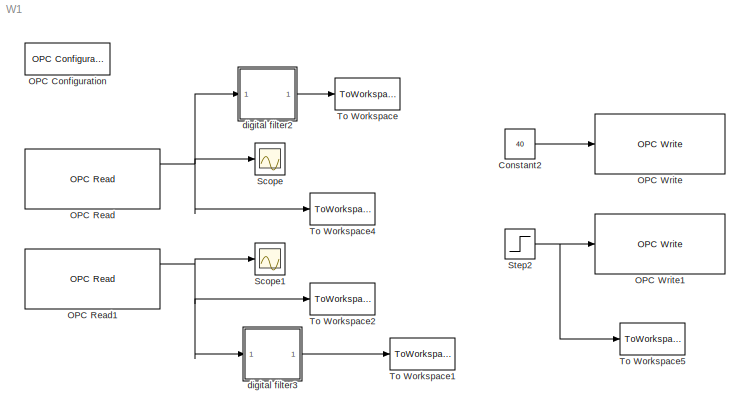
MODEL W1
KIND model
BLOCK [Constant] Constant2
  SID = 63
  Value = 40
BLOCK [Reference] OPC Configuration  REF=opclib/OPC Configuration
  Ports = []
  SID = 1
  SourceBlock = opclib/OPC Configuration
  SourceType = OPC Configuration
  beingUsed = on
  errMissingItems = Error
  errRTViolation = Warn
  errReadWrite = Warn
  errShutdown = Error
  opcServers = localhost/OPCServer.WinCC/10
  rtEnable = on
  showLatency = off
  speedup = 1
BLOCK [Reference] OPC Read  REF=opclib/OPC Read
  Ports = [0, 3]
  SID = 2
  SourceBlock = opclib/OPC Read
  SourceType = OPC Read
  dataType = double
  itemIDs = shuiwei1
  readMode = Synchronous (cache)
  serverHost = localhost
  serverID = OPCServer.WinCC
  showQual = on
  showTS = on
  tsMode = Seconds since start
  updateRate = 0.5
BLOCK [Reference] OPC Read1  REF=opclib/OPC Read
  Ports = [0, 3]
  SID = 6
  SourceBlock = opclib/OPC Read
  SourceType = OPC Read
  dataType = double
  itemIDs = shuiwei2
  readMode = Synchronous (cache)
  serverHost = localhost
  serverID = OPCServer.WinCC
  showQual = on
  showTS = on
  tsMode = Seconds since start
  updateRate = 0.5
BLOCK [Reference] OPC Write  REF=opclib/OPC Write
  Ports = [1]
  SID = 3
  SourceBlock = opclib/OPC Write
  SourceType = OPC Write
  itemIDs = beng1
  serverHost = localhost
  serverID = OPCServer.WinCC
  updateRate = 0
  writeMode = Synchronous
BLOCK [Reference] OPC Write1  REF=opclib/OPC Write
  Ports = [1]
  SID = 8
  SourceBlock = opclib/OPC Write
  SourceType = OPC Write
  itemIDs = beng2
  serverHost = localhost
  serverID = OPCServer.WinCC
  updateRate = 0
  writeMode = Synchronous
BLOCK [Scope] Scope
  DataFormat = StructureWithTime
  Floating = off
  NumInputPorts = 1
  Ports = [1]
  SID = 5
  SampleTime = 0
  TimeRange = 500
  YMax = 11
  YMin = 10
BLOCK [Scope] Scope1
  DataFormat = StructureWithTime
  Floating = off
  NumInputPorts = 1
  Ports = [1]
  SID = 7
  SampleTime = 0
  SaveName = ScopeData1
  TimeRange = 500
  YMax = 11
  YMin = 9
BLOCK [Step] Step2
  After = 50
  Before = 40
  SID = 62
  Time = 500
BLOCK [ToWorkspace] To Workspace
  MaxDataPoints = inf
  Ports = [1]
  SID = 10
  SampleTime = 1
  SaveFormat = Array
  VariableName = h1
BLOCK [ToWorkspace] To Workspace1
  MaxDataPoints = inf
  Ports = [1]
  SID = 11
  SampleTime = 1
  SaveFormat = Array
  VariableName = h2
BLOCK [ToWorkspace] To Workspace2
  MaxDataPoints = inf
  Ports = [1]
  SID = 46
  SampleTime = 1
  SaveFormat = Array
  VariableName = waterlevel2
BLOCK [ToWorkspace] To Workspace4
  MaxDataPoints = inf
  Ports = [1]
  SID = 61
  SampleTime = 1
  SaveFormat = Array
  VariableName = waterlevel1
BLOCK [ToWorkspace] To Workspace5
  MaxDataPoints = inf
  Ports = [1]
  SID = 64
  SampleTime = 1
  SaveFormat = Array
  VariableName = beng2
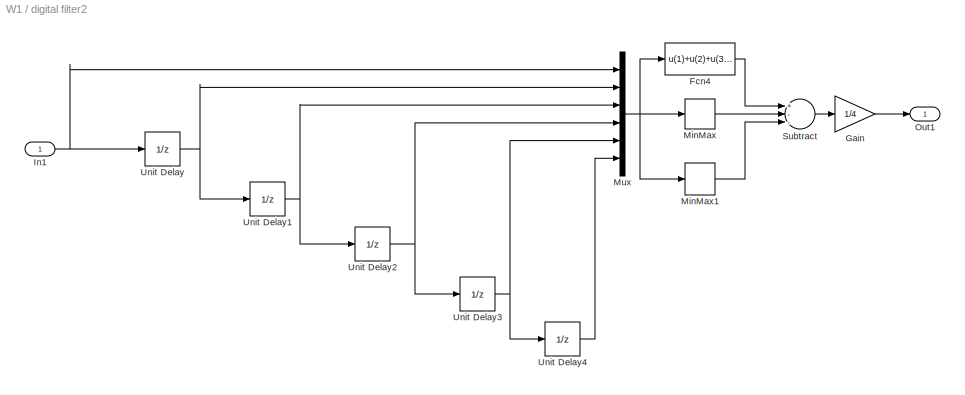
BLOCK [SubSystem] digital filter2
  FunctionWithSeparateData = off
  MaskDisplay = disp('filter')
  MaskHideContents = off
  MaskIconFrame = on
  MaskIconOpaque = on
  MaskIconRotate = none
  MaskIconUnits = autoscale
  MaskPortRotate = default
  MinAlgLoopOccurrences = off
  Opaque = off
  Ports = [1, 1]
  PropExecContextOutsideSubsystem = off
  RTWSystemCode = Auto
  RequestExecContextInheritance = off
  SID = 47
BLOCK [Fcn] digital filter2/Fcn4
  Expr = u(1)+u(2)+u(3)+u(4)+u(5)+u(6)
  SID = 49
  SampleTime = 0.5
BLOCK [Gain] digital filter2/Gain
  Gain = 1/4
  OutDataTypeStr = Inherit: Inherit via internal rule
  ParamDataTypeStr = Inherit: Inherit via internal rule
  SID = 50
  SaturateOnIntegerOverflow = off
BLOCK [Inport] digital filter2/In1
  IconDisplay = Port number
  SID = 48
BLOCK [MinMax] digital filter2/MinMax
  Function = min
  InputSameDT = off
  Ports = [1, 1]
  SID = 51
  SaturateOnIntegerOverflow = off
BLOCK [MinMax] digital filter2/MinMax1
  Function = max
  InputSameDT = off
  Ports = [1, 1]
  SID = 52
  SaturateOnIntegerOverflow = off
BLOCK [Mux] digital filter2/Mux
  DisplayOption = bar
  Inputs = 6
  Ports = [6, 1]
  SID = 53
BLOCK [Outport] digital filter2/Out1
  IconDisplay = Port number
  SID = 60
BLOCK [Sum] digital filter2/Subtract
  InputSameDT = off
  Inputs = +--
  OutDataTypeStr = Inherit: Inherit via internal rule
  Ports = [3, 1]
  SID = 54
  SaturateOnIntegerOverflow = off
BLOCK [UnitDelay] digital filter2/Unit Delay
  InputProcessing = Elements as channels (sample based)
  SID = 55
  SampleTime = 0.5
BLOCK [UnitDelay] digital filter2/Unit Delay1
  InputProcessing = Elements as channels (sample based)
  SID = 56
  SampleTime = 0.5
BLOCK [UnitDelay] digital filter2/Unit Delay2
  InputProcessing = Elements as channels (sample based)
  SID = 57
  SampleTime = 0.5
BLOCK [UnitDelay] digital filter2/Unit Delay3
  InputProcessing = Elements as channels (sample based)
  SID = 58
  SampleTime = 0.5
BLOCK [UnitDelay] digital filter2/Unit Delay4
  InputProcessing = Elements as channels (sample based)
  SID = 59
  SampleTime = 0.5
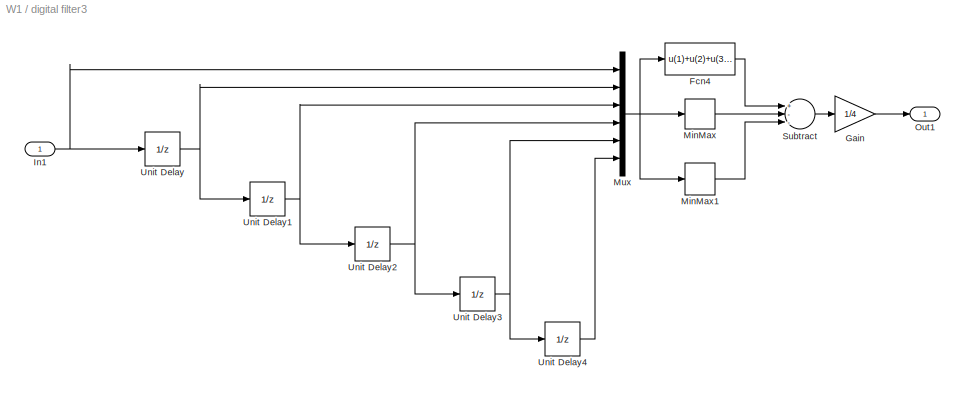
BLOCK [SubSystem] digital filter3
  FunctionWithSeparateData = off
  MaskDisplay = disp('filter')
  MaskHideContents = off
  MaskIconFrame = on
  MaskIconOpaque = on
  MaskIconRotate = none
  MaskIconUnits = autoscale
  MaskPortRotate = default
  MinAlgLoopOccurrences = off
  Opaque = off
  Ports = [1, 1]
  PropExecContextOutsideSubsystem = off
  RTWSystemCode = Auto
  RequestExecContextInheritance = off
  SID = 65
BLOCK [Fcn] digital filter3/Fcn4
  Expr = u(1)+u(2)+u(3)+u(4)+u(5)+u(6)
  SID = 67
  SampleTime = 0.5
BLOCK [Gain] digital filter3/Gain
  Gain = 1/4
  OutDataTypeStr = Inherit: Inherit via internal rule
  ParamDataTypeStr = Inherit: Inherit via internal rule
  SID = 68
  SaturateOnIntegerOverflow = off
BLOCK [Inport] digital filter3/In1
  IconDisplay = Port number
  SID = 66
BLOCK [MinMax] digital filter3/MinMax
  Function = min
  InputSameDT = off
  Ports = [1, 1]
  SID = 69
  SaturateOnIntegerOverflow = off
BLOCK [MinMax] digital filter3/MinMax1
  Function = max
  InputSameDT = off
  Ports = [1, 1]
  SID = 70
  SaturateOnIntegerOverflow = off
BLOCK [Mux] digital filter3/Mux
  DisplayOption = bar
  Inputs = 6
  Ports = [6, 1]
  SID = 71
BLOCK [Outport] digital filter3/Out1
  IconDisplay = Port number
  SID = 78
BLOCK [Sum] digital filter3/Subtract
  InputSameDT = off
  Inputs = +--
  OutDataTypeStr = Inherit: Inherit via internal rule
  Ports = [3, 1]
  SID = 72
  SaturateOnIntegerOverflow = off
BLOCK [UnitDelay] digital filter3/Unit Delay
  InputProcessing = Elements as channels (sample based)
  SID = 73
  SampleTime = 0.5
BLOCK [UnitDelay] digital filter3/Unit Delay1
  InputProcessing = Elements as channels (sample based)
  SID = 74
  SampleTime = 0.5
BLOCK [UnitDelay] digital filter3/Unit Delay2
  InputProcessing = Elements as channels (sample based)
  SID = 75
  SampleTime = 0.5
BLOCK [UnitDelay] digital filter3/Unit Delay3
  InputProcessing = Elements as channels (sample based)
  SID = 76
  SampleTime = 0.5
BLOCK [UnitDelay] digital filter3/Unit Delay4
  InputProcessing = Elements as channels (sample based)
  SID = 77
  SampleTime = 0.5
LINE Constant2:1 -> OPC Write:1
NET OPC Read1:1 -> Scope1:1, To Workspace2:1, digital filter3:1
NET OPC Read:1 -> Scope:1, To Workspace4:1, digital filter2:1
NET Step2:1 -> OPC Write1:1, To Workspace5:1
LINE digital filter2/Fcn4:1 -> digital filter2/Subtract:1
LINE digital filter2/Gain:1 -> digital filter2/Out1:1
NET digital filter2/In1:1 -> digital filter2/Mux:1, digital filter2/Unit Delay:1
LINE digital filter2/MinMax1:1 -> digital filter2/Subtract:3
LINE digital filter2/MinMax:1 -> digital filter2/Subtract:2
NET digital filter2/Mux:1 -> digital filter2/Fcn4:1, digital filter2/MinMax1:1, digital filter2/MinMax:1
LINE digital filter2/Subtract:1 -> digital filter2/Gain:1
NET digital filter2/Unit Delay1:1 -> digital filter2/Mux:3, digital filter2/Unit Delay2:1
NET digital filter2/Unit Delay2:1 -> digital filter2/Mux:4, digital filter2/Unit Delay3:1
NET digital filter2/Unit Delay3:1 -> digital filter2/Mux:5, digital filter2/Unit Delay4:1
LINE digital filter2/Unit Delay4:1 -> digital filter2/Mux:6
NET digital filter2/Unit Delay:1 -> digital filter2/Mux:2, digital filter2/Unit Delay1:1
LINE digital filter2:1 -> To Workspace:1
LINE digital filter3/Fcn4:1 -> digital filter3/Subtract:1
LINE digital filter3/Gain:1 -> digital filter3/Out1:1
NET digital filter3/In1:1 -> digital filter3/Mux:1, digital filter3/Unit Delay:1
LINE digital filter3/MinMax1:1 -> digital filter3/Subtract:3
LINE digital filter3/MinMax:1 -> digital filter3/Subtract:2
NET digital filter3/Mux:1 -> digital filter3/Fcn4:1, digital filter3/MinMax1:1, digital filter3/MinMax:1
LINE digital filter3/Subtract:1 -> digital filter3/Gain:1
NET digital filter3/Unit Delay1:1 -> digital filter3/Mux:3, digital filter3/Unit Delay2:1
NET digital filter3/Unit Delay2:1 -> digital filter3/Mux:4, digital filter3/Unit Delay3:1
NET digital filter3/Unit Delay3:1 -> digital filter3/Mux:5, digital filter3/Unit Delay4:1
LINE digital filter3/Unit Delay4:1 -> digital filter3/Mux:6
NET digital filter3/Unit Delay:1 -> digital filter3/Mux:2, digital filter3/Unit Delay1:1
LINE digital filter3:1 -> To Workspace1:1
note: NET lines group one-source signal fan-out (src -> all destinations, sorted); 1:1 wires keep LINE
